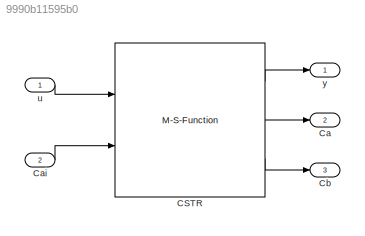
MODEL slx_9990b11595b0
KIND model
CONFIG AbsTol = auto
CONFIG EnableMultiTasking = off
CONFIG FixedStep = auto
CONFIG MaxStep = 10e-3
CONFIG MinStep = auto
CONFIG RelTol = 1e-3
CONFIG SampleTimeConstraint = Unconstrained
CONFIG Solver = VariableStepAuto
CONFIG SolverName = VariableStepAuto
CONFIG StartTime = 0.0
CONFIG StopTime = 15
BLOCK [M-S-Function] CSTR
  FunctionName = sfun_CSTR
  Parameters = [k1;\nk2;\nk3; V], [Ca0; Cb0]
  Ports = [2, 3]
BLOCK [Outport] Ca
  Port = 2
BLOCK [Inport] Cai
  Port = 2
BLOCK [Outport] Cb
  Port = 3
BLOCK [Inport] u
BLOCK [Outport] y
LINE CSTR:1 -> y:1
LINE CSTR:2 -> Ca:1
LINE CSTR:3 -> Cb:1
LINE Cai:1 -> CSTR:2
LINE u:1 -> CSTR:1
